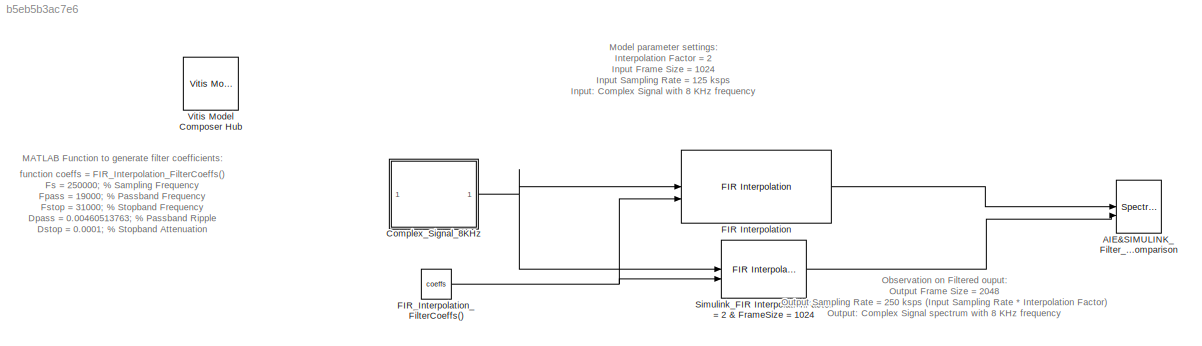
MODEL slx_b5eb5b3ac7e6
KIND model
CONFIG AbsTol = auto
CONFIG EnableMultiTasking = off
CONFIG FixedStep = auto
CONFIG MaxStep = auto
CONFIG MinStep = auto
CONFIG PostLoadFcn = % All frequency values are in Hz.\nFs = 250000;  % Sampling Frequency\nFpass = 19000;            % Passband Frequency\nFstop = 31000;            % Stopband Frequency\nDpass = 0.00460513763;    % Passband Ripple\nDstop = 0.0001;           % Stopband Attenuation\ndens  = 16;               % Density Factor\n% Calculate the order from the parameters using FIRPMORD.\n[N, Fo, Ao, W] = firpmord([Fpass, Fstop]/(F...<+130ch>
CONFIG RelTol = 1e-3
CONFIG SampleTimeConstraint = Unconstrained
CONFIG SolverName = VariableStepAuto
CONFIG StartTime = 0.0
CONFIG StopTime = 1
BLOCK [SpectrumAnalyzer] AIE&SIMULINK_Filter_Spectrum_Comparison
  AllowFFTLengthLessThanSamplesPerUpdate = on
  AveragingMethod = Exponential
  ChannelNames = [""]
  DefaultConfigurationName = spbscopes.SpectrumAnalyzerBlockCfg
  NumInputPorts = 2
  ScopeSpecificationString = spbscopes.SpectrumAnalyzerBlockCfg('CurrentConfiguration', extmgr.ConfigurationSet(extmgr.Configuration('Core','General UI',true,'FigureColor',[0.16        0.16        0.16]),extmgr.Configuration('Visuals','Spectrum',true,'Title','','YLabel','','MinYLim','-48.7185','MaxYLim','30.6408','Legend',true,'AxesProperties',struct('XGrid',{'on','on'},'YGrid',{'on','on'},'ZGrid',{'on','on'},'Color',{[0 0 0]...<+2402ch>
  ShowLegend = on
  WasSavedAsWebScope = on
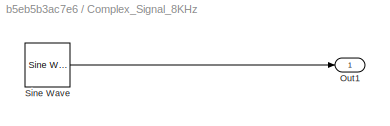
BLOCK [SubSystem] Complex_Signal_8KHz
BLOCK [Outport] Complex_Signal_8KHz/Out1
BLOCK [Reference] Complex_Signal_8KHz/Sine Wave  REF=dspsrcs4/Sine Wave
  SourceBlock = dspsrcs4/Sine Wave
  SourceType = Sine Wave
BLOCK [Reference] FIR Interpolation  REF=aieDSP/FIR Interpolation
  SourceBlock = aieDSP/FIR Interpolation
  SourceType = FIR Interpolation
BLOCK [Constant] FIR_Interpolation_FilterCoeffs()
  OutDataTypeStr = single
  Value = coeffs
BLOCK [Reference] Simulink_FIR InterpolationFactor = 2 & FrameSize = 1024  REF=dspmlti4/FIR
Interpolation
  SourceBlock = dspmlti4/FIR\nInterpolation
  SourceType = FIR Interpolation
  UserDataPersistent = on
BLOCK [Reference] Vitis Model Composer Hub  REF=vmcUtilities/Vitis Model Composer Hub
  SourceBlock = vmcUtilities/Vitis Model Composer Hub
  SourceType = VMC Hub
  Tag = genX
  UserDataPersistent = on
ANNOTATION (root): function coeffs = FIR_Interpolation_FilterCoeffs() Fs = 250000; % Sampling Frequency Fpass = 19000; % Passband Frequency Fstop = 31000; % Stopband Frequency Dpass = 0.00460513763; % Passband Ripple Dstop = 0.0001; % Stopband Attenuation dens = 16; % Density Factor % Calculate the order from the parameters using FIRPMORD. [N, Fo, Ao, W] = firpmord([Fpass, Fstop]/(Fs/2), [1 0], [Dpass, Dstop]); % Ca...<+99ch>
ANNOTATION (root): MATLAB Function to generate filter coefficients:
ANNOTATION (root): Model parameter settings: Interpolation Factor = 2 Input Frame Size = 1024 Input Sampling Rate = 125 ksps Input: Complex Signal with 8 KHz frequency
ANNOTATION (root): Observation on Filtered ouput: Output Frame Size = 2048 Output Sampling Rate = 250 ksps (Input Sampling Rate * Interpolation Factor) Output: Complex Signal spectrum with 8 KHz frequency
LINE Complex_Signal_8KHz/Sine Wave:1 -> Complex_Signal_8KHz/Out1:1
NET Complex_Signal_8KHz:1 -> FIR Interpolation:1, Simulink_FIR InterpolationFactor = 2 & FrameSize = 1024:1
LINE FIR Interpolation:1 -> AIE&SIMULINK_Filter_Spectrum_Comparison:1
NET FIR_Interpolation_FilterCoeffs():1 -> FIR Interpolation:2, Simulink_FIR InterpolationFactor = 2 & FrameSize = 1024:2
LINE Simulink_FIR InterpolationFactor = 2 & FrameSize = 1024:1 -> AIE&SIMULINK_Filter_Spectrum_Comparison:2
note: NET lines group one-source signal fan-out (src -> all destinations, sorted); 1:1 wires keep LINE
